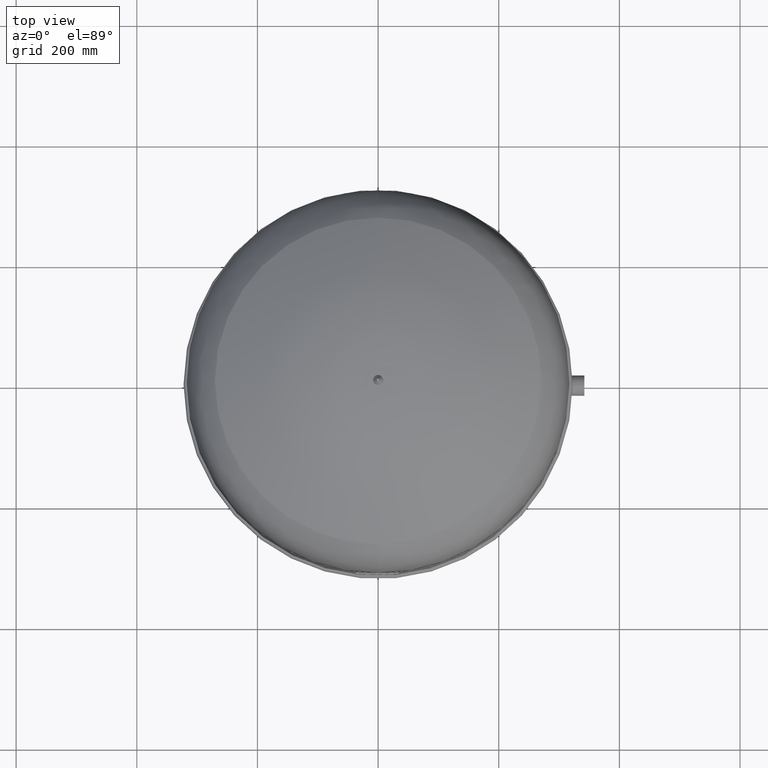
[diagram: clean part render]
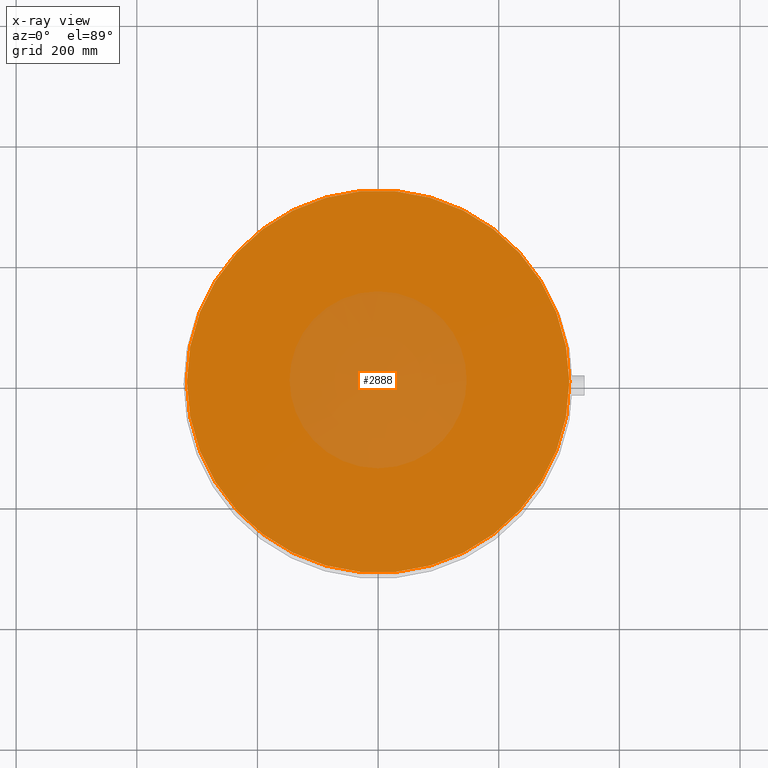
[diagram: x-ray — body ghosted, one internal face saturated and labeled with its STEP entity id]
A machine part, top view, then the same camera in x-ray: the body is ghosted and one INTERNAL B-rep face — a face not visible from any outside direction — is saturated and labeled: STEP entity #2888.
In plain terms, the highlighted face is a freeform B-spline surface patch.
Its self-contained STEP definition (entity closure, byte-faithful):
#2597=CARTESIAN_POINT('',(-317.0,-2.975892E-014,613.000000000000110));
#2598=VERTEX_POINT('',#2597);
#2607=CARTESIAN_POINT('',(317.0,9.061104E-015,613.000000000000110));
#2608=VERTEX_POINT('',#2607);
#2609=CARTESIAN_POINT('',(-1.558411E-014,-2.975892E-014,613.000000000000110));
#2610=DIRECTION('',(0.0,0.0,1.0));
#2611=DIRECTION('',(-1.0,0.0,0.0));
#2612=AXIS2_PLACEMENT_3D('',#2609,#2610,#2611);
#2613=CIRCLE('',#2612,317.0);
#2614=EDGE_CURVE('',#2598,#2608,#2613,.T.);
#2869=CARTESIAN_POINT('',(-1.558411E-014,-2.975892E-014,613.000000000000110));
#2870=DIRECTION('',(0.0,0.0,1.0));
#2871=DIRECTION('',(-1.0,0.0,0.0));
#2872=AXIS2_PLACEMENT_3D('',#2869,#2870,#2871);
#2873=CIRCLE('',#2872,317.0);
#2874=EDGE_CURVE('',#2608,#2598,#2873,.T.);
#2879=CARTESIAN_POINT('',(317.0,316.999999999999940,612.999999999999890));
#2880=CARTESIAN_POINT('',(317.0,-317.000000000000060,613.0));
#2881=CARTESIAN_POINT('',(-317.0,316.999999999999940,613.0));
#2882=CARTESIAN_POINT('',(-317.0,-317.000000000000060,613.000000000000110));
#2883=B_SPLINE_SURFACE_WITH_KNOTS('',1,1,((#2879,#2881),(#2880,#2882)),.UNSPECIFIED.,.F.,.F.,.U.,(2,2),(2,2),(0.0,634.0),(0.0,634.0),.UNSPECIFIED.);
#2884=ORIENTED_EDGE('',*,*,#2614,.F.);
#2885=ORIENTED_EDGE('',*,*,#2874,.F.);
#2886=EDGE_LOOP('',(#2884,#2885));
#2887=FACE_OUTER_BOUND('',#2886,.T.);
#2888=ADVANCED_FACE('',(#2887),#2883,.T.);